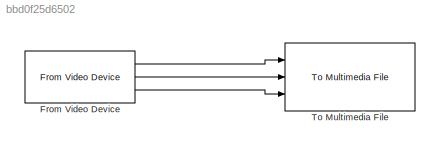
MODEL slx_bbd0f25d6502
KIND model
BLOCK [Reference] From Video Device  REF=imaqlib/From Video Device
  AllMetadata = IsPositionTracked;IsSkeletonTracked;JointDepthIndices;JointImageIndices;JointTrackingState;JointWorldCoordinates;PositionDepthIndices;PositionImageIndices;PositionWorldCoordinates;SegmentationData;SkeletonTrackingID
  BayerSensorAlignment = grbg
  BlockHandle = 1921.0006
  CanDoHWTrigger = no
  DataType = single
  DevXMLPath = <path>
  Device = winvideo 1 (Logitech HD Webcam C525)
  DeviceMenu = winvideo 1 (Logitech HD Webcam C525)
  EnableHWTrigger = off
  EngLibPath = C:\Program Files\MATLAB\R2014b\toolbox\imaq\imaqblks\imaqmex\win64
  EngXMLPath = C:\Program Files\MATLAB\R2014b\toolbox\imaq\imaq\private
  ObjConstructor = videoinput('winvideo', 1)
  OutputPortsMode = Separate color signals
  Ports = [0, 3]
  ROIColumn = 0
  ROIHeight = 896
  ROIPosition = [0 0 896 1600]
  ROIRow = 0
  ROIWidth = 1600
  ReturnedColorSpace = rgb
  SampleTime = 1/30
  SourceBlock = imaqlib/From Video Device
  SourceType = From Video Device
  TriggerConfiguration = none/none
  UserDataPersistent = on
  VideoFormat = RGB24_1600x896
  VideoFormatMenu = RGB24_1600x896
  VideoSource = input1
BLOCK [Reference] To Multimedia File  REF=dspvision/To Multimedia File
  Ports = [3]
  SourceBlock = dspvision/To Multimedia File
  SourceType = To Multimedia File
  audioCompressor = None (uncompressed)
  audioDatatype = Determine from input data type
  fileType = AVI
  fourcc = RGB
  imagePorts = Separate color signals
  mj2000CompFactor = 10
  outputFilename = output.avi
  streamSelection = Video only
  videoCompressor = None (uncompressed)
  videoQuality = 75
LINE From Video Device:1 -> To Multimedia File:1
LINE From Video Device:2 -> To Multimedia File:2
LINE From Video Device:3 -> To Multimedia File:3
note: 1 file-system path scrubbed to <path> (not preserved elsewhere — flat text is the only slx artifact)
